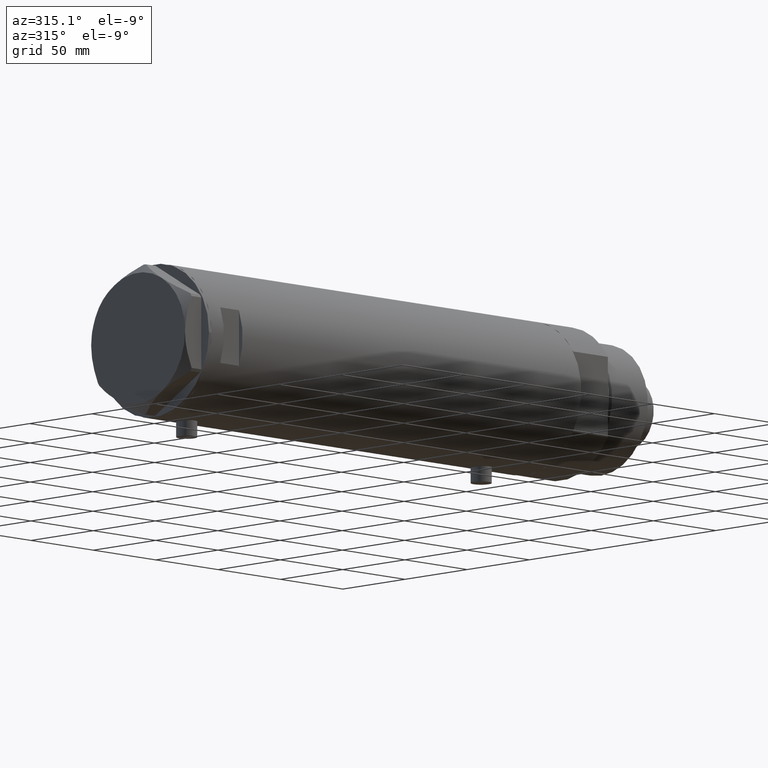
[diagram: clean part render]
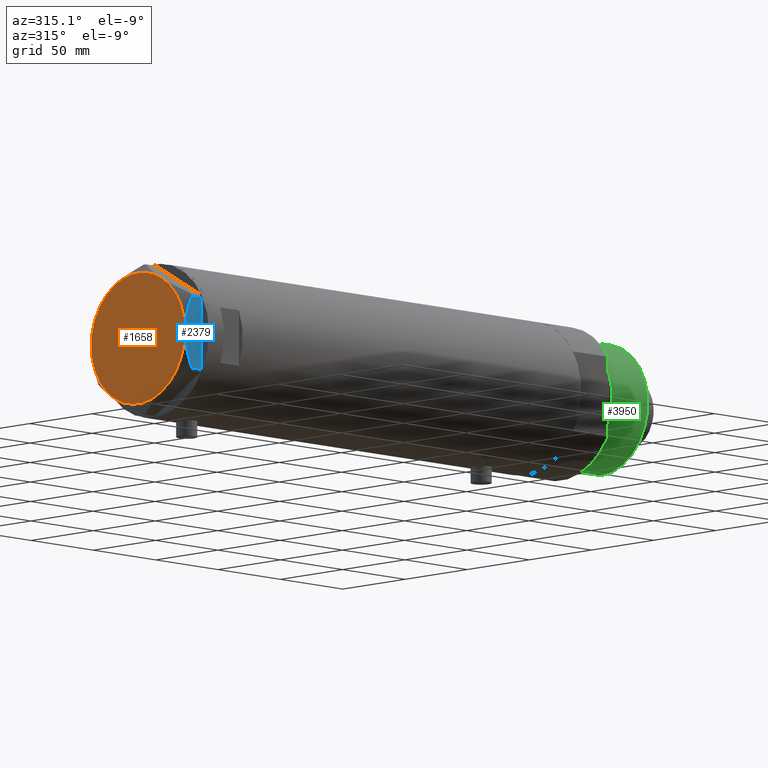
[diagram: same view with three faces highlighted in distinct colors, each labeled with its STEP entity id]
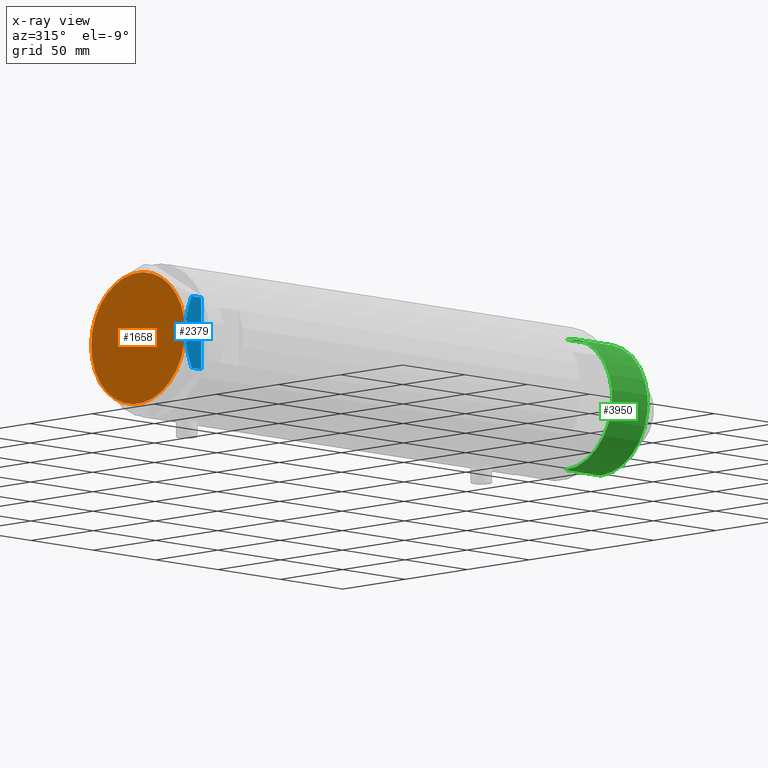
[diagram: x-ray of the same camera — body ghosted, the three highlighted faces saturated]
A machine part, auxiliary view with three faces highlighted in distinct colors.
The next image is the same camera in x-ray (body ghosted, the three faces saturated) — at least one of them is partly hidden behind the body in this view.
Their STEP definitions:

[orange] entity #1658 — the highlighted planar face has unit normal (-1, -0, 0).
#34 = AXIS2_PLACEMENT_3D ( 'NONE', #3774, #2395, #2033 ) ;
#76 = CARTESIAN_POINT ( 'NONE',  ( 18.87500000000000000, 32.69245899286255508, 13.00000000000000000 ) ) ;
#89 = EDGE_LOOP ( 'NONE', ( #117, #1226, #350, #1938, #2765, #3863 ) ) ;
#117 = ORIENTED_EDGE ( 'NONE', *, *, #501, .T. ) ;
#189 = AXIS2_PLACEMENT_3D ( 'NONE', #1099, #744, #2859 ) ;
#197 = AXIS2_PLACEMENT_3D ( 'NONE', #1349, #1688, #3088 ) ;
#236 = CARTESIAN_POINT ( 'NONE',  ( 0.000000000000000000, 0.000000000000000000, 13.00000000000000000 ) ) ;
#282 = DIRECTION ( 'NONE',  ( 0.000000000000000000, 0.000000000000000000, 1.000000000000000000 ) ) ;
#350 = ORIENTED_EDGE ( 'NONE', *, *, #2884, .T. ) ;
#434 = EDGE_CURVE ( 'NONE', #4423, #1985, #3367, .T. ) ;
#459 = EDGE_CURVE ( 'NONE', #1174, #4423, #1011, .T. ) ;
#501 = EDGE_CURVE ( 'NONE', #1985, #1104, #700, .T. ) ;
#614 = DIRECTION ( 'NONE',  ( 0.000000000000000000, 0.000000000000000000, 1.000000000000000000 ) ) ;
#700 = CIRCLE ( 'NONE', #189, 37.75000000000000000 ) ;
#744 = DIRECTION ( 'NONE',  ( 0.000000000000000000, 0.000000000000000000, 1.000000000000000000 ) ) ;
#792 = AXIS2_PLACEMENT_3D ( 'NONE', #3000, #3755, #2019 ) ;
#900 = VERTEX_POINT ( 'NONE', #1139 ) ;
#909 = PLANE ( 'NONE',  #197 ) ;
#1011 = CIRCLE ( 'NONE', #1247, 37.75000000000000000 ) ;
#1031 = DIRECTION ( 'NONE',  ( 1.000000000000000000, 0.000000000000000000, 0.000000000000000000 ) ) ;
#1099 = CARTESIAN_POINT ( 'NONE',  ( 0.000000000000000000, 0.000000000000000000, 13.00000000000000000 ) ) ;
#1104 = VERTEX_POINT ( 'NONE', #2960 ) ;
#1139 = CARTESIAN_POINT ( 'NONE',  ( -18.87499999999999645, 32.69245899286256218, 13.00000000000000000 ) ) ;
#1174 = VERTEX_POINT ( 'NONE', #2651 ) ;
#1226 = ORIENTED_EDGE ( 'NONE', *, *, #3070, .T. ) ;
#1247 = AXIS2_PLACEMENT_3D ( 'NONE', #236, #282, #2764 ) ;
#1349 = CARTESIAN_POINT ( 'NONE',  ( 0.000000000000000000, 0.000000000000000000, 13.00000000000000000 ) ) ;
#1373 = VERTEX_POINT ( 'NONE', #76 ) ;
#1658 = ADVANCED_FACE ( 'NONE', ( #2660 ), #909, .T. ) ;
#1688 = DIRECTION ( 'NONE',  ( 0.000000000000000000, 0.000000000000000000, 1.000000000000000000 ) ) ;
#1758 = AXIS2_PLACEMENT_3D ( 'NONE', #2066, #3767, #1031 ) ;
#1914 = CIRCLE ( 'NONE', #792, 37.75000000000000000 ) ;
#1938 = ORIENTED_EDGE ( 'NONE', *, *, #2208, .T. ) ;
#1985 = VERTEX_POINT ( 'NONE', #2667 ) ;
#2019 = DIRECTION ( 'NONE',  ( 1.000000000000000000, 0.000000000000000000, 0.000000000000000000 ) ) ;
#2033 = DIRECTION ( 'NONE',  ( 1.000000000000000000, 0.000000000000000000, 0.000000000000000000 ) ) ;
#2066 = CARTESIAN_POINT ( 'NONE',  ( 0.000000000000000000, 0.000000000000000000, 13.00000000000000000 ) ) ;
#2208 = EDGE_CURVE ( 'NONE', #900, #1174, #1914, .T. ) ;
#2395 = DIRECTION ( 'NONE',  ( 0.000000000000000000, 0.000000000000000000, 1.000000000000000000 ) ) ;
#2544 = CIRCLE ( 'NONE', #1758, 37.75000000000000000 ) ;
#2651 = CARTESIAN_POINT ( 'NONE',  ( -37.75000000000000000, -1.201851678989727067E-14, 13.00000000000000000 ) ) ;
#2660 = FACE_OUTER_BOUND ( 'NONE', #89, .T. ) ;
#2667 = CARTESIAN_POINT ( 'NONE',  ( 18.87499999999998579, -32.69245899286256218, 13.00000000000000000 ) ) ;
#2764 = DIRECTION ( 'NONE',  ( 1.000000000000000000, 0.000000000000000000, 0.000000000000000000 ) ) ;
#2765 = ORIENTED_EDGE ( 'NONE', *, *, #459, .T. ) ;
#2859 = DIRECTION ( 'NONE',  ( 1.000000000000000000, 0.000000000000000000, 0.000000000000000000 ) ) ;
#2884 = EDGE_CURVE ( 'NONE', #1373, #900, #2544, .T. ) ;
#2960 = CARTESIAN_POINT ( 'NONE',  ( 37.75000000000000711, 1.802777518484591547E-14, 13.00000000000000000 ) ) ;
#3000 = CARTESIAN_POINT ( 'NONE',  ( 0.000000000000000000, 0.000000000000000000, 13.00000000000000000 ) ) ;
#3070 = EDGE_CURVE ( 'NONE', #1104, #1373, #3736, .T. ) ;
#3074 = CARTESIAN_POINT ( 'NONE',  ( 0.000000000000000000, 0.000000000000000000, 13.00000000000000000 ) ) ;
#3088 = DIRECTION ( 'NONE',  ( 1.000000000000000000, 0.000000000000000000, -0.000000000000000000 ) ) ;
#3367 = CIRCLE ( 'NONE', #34, 37.75000000000000000 ) ;
#3436 = DIRECTION ( 'NONE',  ( 1.000000000000000000, 0.000000000000000000, 0.000000000000000000 ) ) ;
#3736 = CIRCLE ( 'NONE', #4310, 37.75000000000000000 ) ;
#3755 = DIRECTION ( 'NONE',  ( 0.000000000000000000, 0.000000000000000000, 1.000000000000000000 ) ) ;
#3767 = DIRECTION ( 'NONE',  ( 0.000000000000000000, 0.000000000000000000, 1.000000000000000000 ) ) ;
#3774 = CARTESIAN_POINT ( 'NONE',  ( 0.000000000000000000, 0.000000000000000000, 13.00000000000000000 ) ) ;
#3863 = ORIENTED_EDGE ( 'NONE', *, *, #434, .T. ) ;
#4126 = CARTESIAN_POINT ( 'NONE',  ( -18.87499999999999645, -32.69245899286255508, 13.00000000000000000 ) ) ;
#4310 = AXIS2_PLACEMENT_3D ( 'NONE', #3074, #614, #3436 ) ;
#4423 = VERTEX_POINT ( 'NONE', #4126 ) ;

[blue] entity #2379 — the highlighted planar face has unit normal (-0, 1, 0).
#14 = CARTESIAN_POINT ( 'NONE',  ( -37.74999999999999289, 11.46926194450821690, 11.30493988086503521 ) ) ;
#36 = EDGE_CURVE ( 'NONE', #1174, #45, #1824, .T. ) ;
#45 = VERTEX_POINT ( 'NONE', #1050 ) ;
#123 = EDGE_CURVE ( 'NONE', #1386, #1174, #2919, .T. ) ;
#126 = EDGE_CURVE ( 'NONE', #1386, #1531, #3183, .T. ) ;
#143 = DIRECTION ( 'NONE',  ( 0.000000000000000000, 0.000000000000000000, 1.000000000000000000 ) ) ;
#324 = FACE_OUTER_BOUND ( 'NONE', #949, .T. ) ;
#327 = ORIENTED_EDGE ( 'NONE', *, *, #36, .F. ) ;
#331 = CARTESIAN_POINT ( 'NONE',  ( -37.75000000000000711, 20.67497266190838090, 7.709124142616995634 ) ) ;
#366 = CARTESIAN_POINT ( 'NONE',  ( -37.75000000000000000, 7.143641079404827288, 12.47474846747316946 ) ) ;
#381 = CARTESIAN_POINT ( 'NONE',  ( -37.75000000000000000, 17.42329546264825524, 9.202188366597436442 ) ) ;
#389 = LINE ( 'NONE', #4257, #3745 ) ;
#399 = CARTESIAN_POINT ( 'NONE',  ( -37.75000000000000711, 3.615248338761639868, 13.00000000000000355 ) ) ;
#430 = CARTESIAN_POINT ( 'NONE',  ( -37.75000000000000711, 20.67497266190837024, 13.00000000000000000 ) ) ;
#536 = CARTESIAN_POINT ( 'NONE',  ( -37.74999999999999289, -20.67497266190838090, 7.709124142616975206 ) ) ;
#610 = DIRECTION ( 'NONE',  ( 1.000000000000000000, 3.183713056926429451E-16, -0.000000000000000000 ) ) ;
#865 = VECTOR ( 'NONE', #3202, 1000.000000000000000 ) ;
#906 = CARTESIAN_POINT ( 'NONE',  ( -37.74999999999999289, -12.34877760086739862, 11.06613894200179260 ) ) ;
#949 = EDGE_LOOP ( 'NONE', ( #1016, #4414, #1816, #3111, #327 ) ) ;
#961 = VECTOR ( 'NONE', #143, 1000.000000000000000 ) ;
#1016 = ORIENTED_EDGE ( 'NONE', *, *, #123, .F. ) ;
#1023 = CARTESIAN_POINT ( 'NONE',  ( -37.75000000000000000, -1.811728074765795338, 12.96720910498919999 ) ) ;
#1050 = CARTESIAN_POINT ( 'NONE',  ( -37.74999999999999289, -20.67497266190838090, 7.709124142616975206 ) ) ;
#1174 = VERTEX_POINT ( 'NONE', #2651 ) ;
#1282 = CARTESIAN_POINT ( 'NONE',  ( -37.75000000000000000, -0.9015134592203577490, 13.00000000000000178 ) ) ;
#1386 = VERTEX_POINT ( 'NONE', #331 ) ;
#1388 = CARTESIAN_POINT ( 'NONE',  ( -37.75000000000000711, 21.79497266190837124, 13.00000000000000000 ) ) ;
#1531 = VERTEX_POINT ( 'NONE', #2638 ) ;
#1625 = VERTEX_POINT ( 'NONE', #2996 ) ;
#1704 = CARTESIAN_POINT ( 'NONE',  ( -37.75000000000000000, -4.503994958793054337, 12.74237531377022670 ) ) ;
#1810 = CARTESIAN_POINT ( 'NONE',  ( -37.75000000000000000, -1.201851678989727067E-14, 13.00000000000000000 ) ) ;
#1816 = ORIENTED_EDGE ( 'NONE', *, *, #3875, .T. ) ;
#1824 = B_SPLINE_CURVE_WITH_KNOTS ( 'NONE', 3,
 ( #1980, #1282, #1023, #3483, #1704, #4034, #3700, #906, #2063, #2081, #2411, #3138, #4524, #536 ),
 .UNSPECIFIED., .F., .F.,
 ( 4, 2, 2, 2, 2, 2, 4 ),
 ( 0.07749717587205659508, 0.08017617902235898986, 0.08285518217266138463, 0.08821318847326617418, 0.09357119477387096373, 0.09625019792417334463, 0.09892920107447573941 ),
 .UNSPECIFIED. ) ;
#1980 = CARTESIAN_POINT ( 'NONE',  ( -37.75000000000000000, -1.201851678989727067E-14, 13.00000000000000000 ) ) ;
#2063 = CARTESIAN_POINT ( 'NONE',  ( -37.74999999999999289, -14.04742653794399132, 10.50092616350622698 ) ) ;
#2081 = CARTESIAN_POINT ( 'NONE',  ( -37.74999999999999289, -16.56731140591524110, 9.531835068628826235 ) ) ;
#2108 = PLANE ( 'NONE',  #3947 ) ;
#2379 = ADVANCED_FACE ( 'NONE', ( #324 ), #2108, .F. ) ;
#2411 = CARTESIAN_POINT ( 'NONE',  ( -37.75000000000000000, -17.40390235304479205, 9.187919079516763787 ) ) ;
#2501 = CARTESIAN_POINT ( 'NONE',  ( -37.75000000000000000, 14.89874562435961103, 10.17375260246623903 ) ) ;
#2629 = CARTESIAN_POINT ( 'NONE',  ( -37.74999999999999289, -20.67497266190837379, 13.00000000000000000 ) ) ;
#2638 = CARTESIAN_POINT ( 'NONE',  ( -37.75000000000000711, 20.67497266190837024, 0.000000000000000000 ) ) ;
#2651 = CARTESIAN_POINT ( 'NONE',  ( -37.75000000000000000, -1.201851678989727067E-14, 13.00000000000000000 ) ) ;
#2806 = CARTESIAN_POINT ( 'NONE',  ( -37.75000000000000711, 20.67497266190838090, 7.709124142616995634 ) ) ;
#2919 = B_SPLINE_CURVE_WITH_KNOTS ( 'NONE', 3,
 ( #2806, #4289, #381, #2501, #3528, #3843, #14, #366, #399, #1810 ),
 .UNSPECIFIED., .F., .F.,
 ( 4, 2, 2, 2, 4 ),
 ( 0.05601050456479945983, 0.06138217239161374017, 0.06406800630502088034, 0.06675384021842802051, 0.07749717587205659508 ),
 .UNSPECIFIED. ) ;
#2996 = CARTESIAN_POINT ( 'NONE',  ( -37.74999999999999289, -20.67497266190837379, 0.000000000000000000 ) ) ;
#3111 = ORIENTED_EDGE ( 'NONE', *, *, #3999, .T. ) ;
#3138 = CARTESIAN_POINT ( 'NONE',  ( -37.75000000000000000, -19.05362936076134517, 8.470554105526115762 ) ) ;
#3183 = LINE ( 'NONE', #430, #865 ) ;
#3202 = DIRECTION ( 'NONE',  ( 0.000000000000000000, 0.000000000000000000, -1.000000000000000000 ) ) ;
#3483 = CARTESIAN_POINT ( 'NONE',  ( -37.74999999999998579, -3.611424898442238351, 12.83826937481876662 ) ) ;
#3528 = CARTESIAN_POINT ( 'NONE',  ( -37.74999999999999289, 14.04433099034388199, 10.48027127384610857 ) ) ;
#3700 = CARTESIAN_POINT ( 'NONE',  ( -37.75000000000000000, -8.905753572404320195, 11.99914237172014886 ) ) ;
#3745 = VECTOR ( 'NONE', #4162, 1000.000000000000000 ) ;
#3843 = CARTESIAN_POINT ( 'NONE',  ( -37.74999999999999289, 12.33018559404073855, 11.04557586999680474 ) ) ;
#3875 = EDGE_CURVE ( 'NONE', #1531, #1625, #389, .T. ) ;
#3947 = AXIS2_PLACEMENT_3D ( 'NONE', #1388, #610, #4480 ) ;
#3999 = EDGE_CURVE ( 'NONE', #1625, #45, #4301, .T. ) ;
#4034 = CARTESIAN_POINT ( 'NONE',  ( -37.74999999999999289, -7.161343005612803125, 12.36677985830371895 ) ) ;
#4162 = DIRECTION ( 'NONE',  ( 3.183713056926429451E-16, -1.000000000000000000, 0.000000000000000000 ) ) ;
#4257 = CARTESIAN_POINT ( 'NONE',  ( -37.75000000000000711, 21.79497266190837124, 0.000000000000000000 ) ) ;
#4289 = CARTESIAN_POINT ( 'NONE',  ( -37.75000000000001421, 19.06473524669327446, 8.482612457517163307 ) ) ;
#4301 = LINE ( 'NONE', #2629, #961 ) ;
#4414 = ORIENTED_EDGE ( 'NONE', *, *, #126, .T. ) ;
#4480 = DIRECTION ( 'NONE',  ( -3.183713056926429451E-16, 1.000000000000000000, 0.000000000000000000 ) ) ;
#4524 = CARTESIAN_POINT ( 'NONE',  ( -37.75000000000000000, -19.86857906850810096, 8.096480699986589258 ) ) ;

[green] entity #3950 — the highlighted cylindrical surface (partial cylindrical patch) has radius 37.5 mm, axis along (-1, -0, 0).
#63 = CARTESIAN_POINT ( 'NONE',  ( 0.000000000000000000, 0.000000000000000000, 31.27384048104054415 ) ) ;
#254 = DIRECTION ( 'NONE',  ( 1.000000000000000000, 0.000000000000000000, 0.000000000000000000 ) ) ;
#304 = ORIENTED_EDGE ( 'NONE', *, *, #2511, .F. ) ;
#970 = LINE ( 'NONE', #1363, #2062 ) ;
#1053 = CARTESIAN_POINT ( 'NONE',  ( -37.50000000000000711, 0.000000000000000000, 31.27384048104054415 ) ) ;
#1363 = CARTESIAN_POINT ( 'NONE',  ( -37.50000000000000711, 0.000000000000000000, 59.89999999999999147 ) ) ;
#1597 = EDGE_CURVE ( 'NONE', #2295, #3555, #3142, .T. ) ;
#1652 = CARTESIAN_POINT ( 'NONE',  ( 0.000000000000000000, 0.000000000000000000, 59.89999999999999147 ) ) ;
#1864 = CARTESIAN_POINT ( 'NONE',  ( 0.000000000000000000, 0.000000000000000000, 59.89999999999999147 ) ) ;
#1867 = CARTESIAN_POINT ( 'NONE',  ( 37.50000000000000711, 4.592425496802575156E-15, 59.89999999999999147 ) ) ;
#1910 = DIRECTION ( 'NONE',  ( -0.000000000000000000, -0.000000000000000000, -1.000000000000000000 ) ) ;
#2062 = VECTOR ( 'NONE', #3109, 1000.000000000000000 ) ;
#2157 = ORIENTED_EDGE ( 'NONE', *, *, #1597, .F. ) ;
#2238 = ORIENTED_EDGE ( 'NONE', *, *, #2804, .T. ) ;
#2263 = AXIS2_PLACEMENT_3D ( 'NONE', #1864, #1910, #2990 ) ;
#2295 = VERTEX_POINT ( 'NONE', #4105 ) ;
#2305 = CARTESIAN_POINT ( 'NONE',  ( 37.50000000000000711, 4.592425496802575156E-15, 59.89999999999999147 ) ) ;
#2492 = DIRECTION ( 'NONE',  ( -0.000000000000000000, -0.000000000000000000, -1.000000000000000000 ) ) ;
#2511 = EDGE_CURVE ( 'NONE', #3555, #4133, #3625, .T. ) ;
#2583 = FACE_OUTER_BOUND ( 'NONE', #2968, .T. ) ;
#2767 = AXIS2_PLACEMENT_3D ( 'NONE', #1652, #3340, #254 ) ;
#2804 = EDGE_CURVE ( 'NONE', #2295, #2847, #970, .T. ) ;
#2847 = VERTEX_POINT ( 'NONE', #1053 ) ;
#2934 = VECTOR ( 'NONE', #2492, 1000.000000000000000 ) ;
#2968 = EDGE_LOOP ( 'NONE', ( #304, #2157, #2238, #3882 ) ) ;
#2990 = DIRECTION ( 'NONE',  ( -1.000000000000000000, 0.000000000000000000, 0.000000000000000000 ) ) ;
#3109 = DIRECTION ( 'NONE',  ( -0.000000000000000000, -0.000000000000000000, -1.000000000000000000 ) ) ;
#3142 = CIRCLE ( 'NONE', #2767, 37.50000000000000711 ) ;
#3257 = CYLINDRICAL_SURFACE ( 'NONE', #2263, 37.50000000000000711 ) ;
#3276 = DIRECTION ( 'NONE',  ( 1.000000000000000000, 0.000000000000000000, 0.000000000000000000 ) ) ;
#3340 = DIRECTION ( 'NONE',  ( 0.000000000000000000, 0.000000000000000000, 1.000000000000000000 ) ) ;
#3555 = VERTEX_POINT ( 'NONE', #2305 ) ;
#3616 = EDGE_CURVE ( 'NONE', #2847, #4133, #4157, .T. ) ;
#3625 = LINE ( 'NONE', #1867, #2934 ) ;
#3639 = DIRECTION ( 'NONE',  ( -0.000000000000000000, -0.000000000000000000, 1.000000000000000000 ) ) ;
#3882 = ORIENTED_EDGE ( 'NONE', *, *, #3616, .T. ) ;
#3943 = AXIS2_PLACEMENT_3D ( 'NONE', #63, #3639, #3276 ) ;
#3950 = ADVANCED_FACE ( 'NONE', ( #2583 ), #3257, .T. ) ;
#4098 = CARTESIAN_POINT ( 'NONE',  ( 37.50000000000000711, 4.592425496802575156E-15, 31.27384048104054415 ) ) ;
#4105 = CARTESIAN_POINT ( 'NONE',  ( -37.50000000000000711, 0.000000000000000000, 59.89999999999999147 ) ) ;
#4133 = VERTEX_POINT ( 'NONE', #4098 ) ;
#4157 = CIRCLE ( 'NONE', #3943, 37.50000000000000711 ) ;